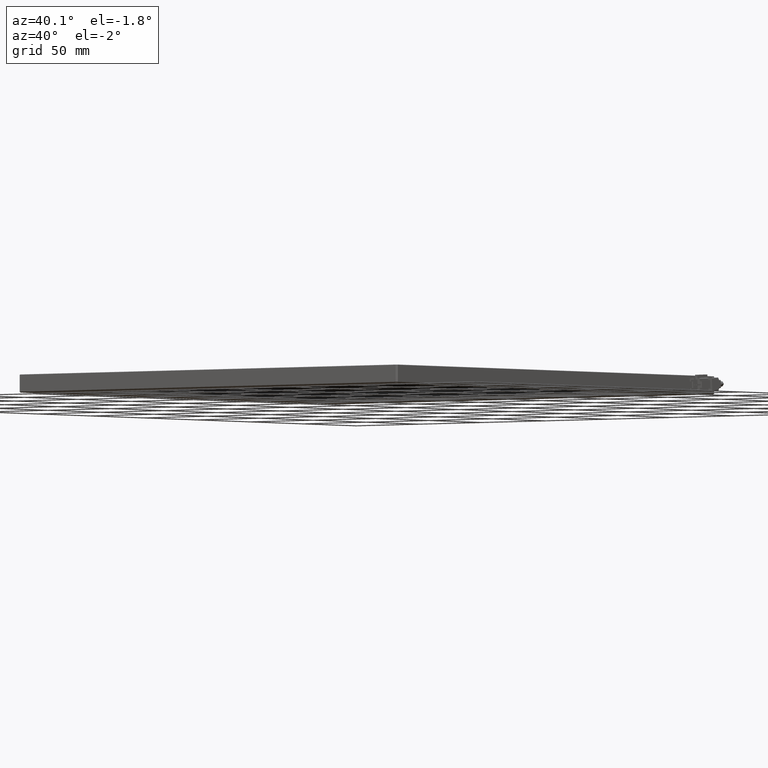
[diagram: clean part render]
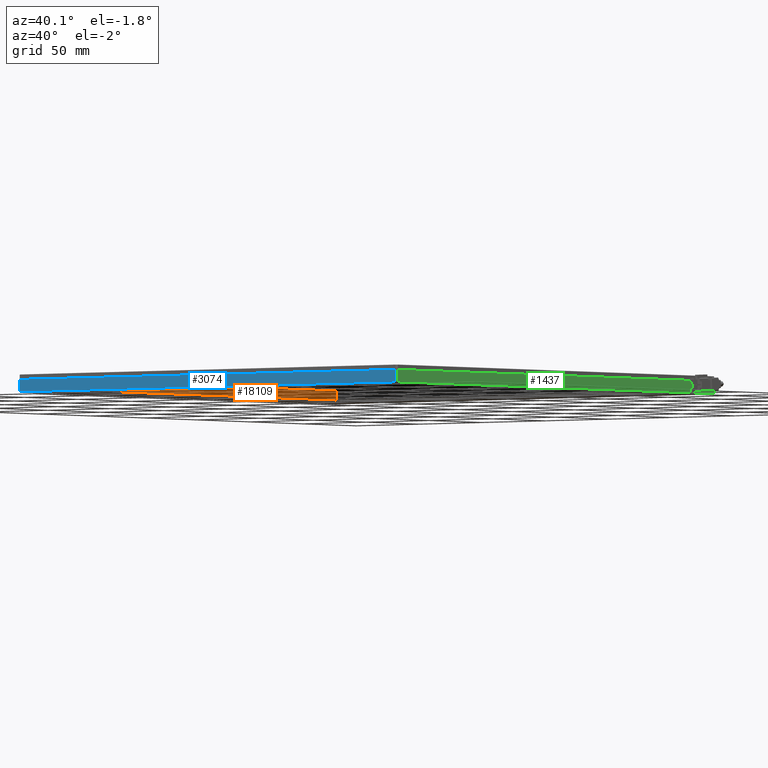
[diagram: same view with three faces highlighted in distinct colors, each labeled with its STEP entity id]
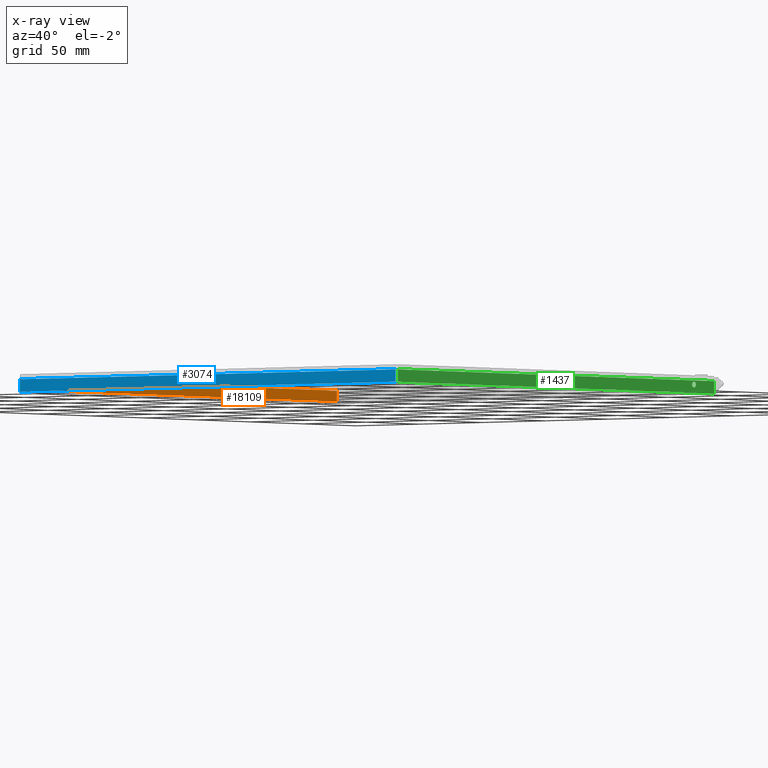
[diagram: x-ray of the same camera — body ghosted, the three highlighted faces saturated]
A machine part, auxiliary view with three faces highlighted in distinct colors.
The next image is the same camera in x-ray (body ghosted, the three faces saturated) — at least one of them is partly hidden behind the body in this view.
Their STEP definitions:

[orange] entity #18109 — the highlighted planar face has unit normal (-1, -0, 0).
#323 = CARTESIAN_POINT ( 'NONE',  ( -175.7273477157360200, -105.5461928934010400, -1.200000000000067900 ) ) ;
#758 = ORIENTED_EDGE ( 'NONE', *, *, #7901, .T. ) ;
#916 = DIRECTION ( 'NONE',  ( -0.0000000000000000000, -1.000000000000000000, 0.0000000000000000000 ) ) ;
#979 = DIRECTION ( 'NONE',  ( -0.0000000000000000000, -0.0000000000000000000, -1.000000000000000000 ) ) ;
#1308 = CARTESIAN_POINT ( 'NONE',  ( -175.7273477157360200, -105.5461928934010400, -1.200000000000067900 ) ) ;
#1511 = EDGE_LOOP ( 'NONE', ( #4537, #18456, #4574, #758 ) ) ;
#1960 = PLANE ( 'NONE',  #7825 ) ;
#2074 = LINE ( 'NONE', #15547, #13334 ) ;
#3110 = EDGE_CURVE ( 'NONE', #3501, #5542, #8206, .T. ) ;
#3501 = VERTEX_POINT ( 'NONE', #4743 ) ;
#3866 = VECTOR ( 'NONE', #8631, 1000.000000000000000 ) ;
#4537 = ORIENTED_EDGE ( 'NONE', *, *, #9585, .F. ) ;
#4574 = ORIENTED_EDGE ( 'NONE', *, *, #6624, .F. ) ;
#4743 = CARTESIAN_POINT ( 'NONE',  ( -175.7273477157360400, 184.4538071065989300, -1.200000000000067900 ) ) ;
#5542 = VERTEX_POINT ( 'NONE', #323 ) ;
#6624 = EDGE_CURVE ( 'NONE', #13172, #3501, #2074, .T. ) ;
#7820 = CARTESIAN_POINT ( 'NONE',  ( -175.7273477157360400, 185.4538071065989300, -1.200000000000067900 ) ) ;
#7825 = AXIS2_PLACEMENT_3D ( 'NONE', #7820, #18114, #9292 ) ;
#7901 = EDGE_CURVE ( 'NONE', #13172, #14641, #8609, .T. ) ;
#8206 = LINE ( 'NONE', #19036, #15585 ) ;
#8609 = LINE ( 'NONE', #10447, #16460 ) ;
#8631 = DIRECTION ( 'NONE',  ( 0.0000000000000000000, 0.0000000000000000000, 1.000000000000000000 ) ) ;
#9292 = DIRECTION ( 'NONE',  ( 1.158462595258484500E-016, -1.000000000000000000, 0.0000000000000000000 ) ) ;
#9521 = CARTESIAN_POINT ( 'NONE',  ( -175.7273477157360400, 184.4538071065989300, 4.999999999999931600 ) ) ;
#9585 = EDGE_CURVE ( 'NONE', #5542, #14641, #11244, .T. ) ;
#10447 = CARTESIAN_POINT ( 'NONE',  ( -175.7273477157360400, 189.4538071065989300, 4.999999999999931600 ) ) ;
#11244 = LINE ( 'NONE', #1308, #3866 ) ;
#13172 = VERTEX_POINT ( 'NONE', #9521 ) ;
#13334 = VECTOR ( 'NONE', #979, 1000.000000000000000 ) ;
#13366 = DIRECTION ( 'NONE',  ( -0.0000000000000000000, -1.000000000000000000, -0.0000000000000000000 ) ) ;
#14641 = VERTEX_POINT ( 'NONE', #18212 ) ;
#15547 = CARTESIAN_POINT ( 'NONE',  ( -175.7273477157360400, 184.4538071065989300, -1.200000000000067900 ) ) ;
#15585 = VECTOR ( 'NONE', #916, 1000.000000000000000 ) ;
#16460 = VECTOR ( 'NONE', #13366, 1000.000000000000000 ) ;
#16738 = FACE_OUTER_BOUND ( 'NONE', #1511, .T. ) ;
#18109 = ADVANCED_FACE ( 'NONE', ( #16738 ), #1960, .F. ) ;
#18114 = DIRECTION ( 'NONE',  ( -1.000000000000000000, -1.158462595258484500E-016, 0.0000000000000000000 ) ) ;
#18212 = CARTESIAN_POINT ( 'NONE',  ( -175.7273477157360200, -105.5461928934010400, 4.999999999999931600 ) ) ;
#18456 = ORIENTED_EDGE ( 'NONE', *, *, #3110, .F. ) ;
#19036 = CARTESIAN_POINT ( 'NONE',  ( -175.7273477157360400, -106.5461928934010400, -1.200000000000067900 ) ) ;

[blue] entity #3074 — the highlighted planar face has unit normal (0, 1, 0).
#1485 = EDGE_CURVE ( 'NONE', #9835, #9663, #11921, .T. ) ;
#1495 = CARTESIAN_POINT ( 'NONE',  ( 119.2726522842640100, -110.5461928934010600, -2.500000000000069700 ) ) ;
#1635 = LINE ( 'NONE', #3003, #5514 ) ;
#2191 = ORIENTED_EDGE ( 'NONE', *, *, #12786, .F. ) ;
#2788 = DIRECTION ( 'NONE',  ( 0.0000000000000000000, 1.000000000000000000, 0.0000000000000000000 ) ) ;
#2812 = DIRECTION ( 'NONE',  ( 0.0000000000000000000, -0.0000000000000000000, 1.000000000000000000 ) ) ;
#2872 = CARTESIAN_POINT ( 'NONE',  ( -179.7273477157360400, -110.5461928934010600, 4.999999999999931600 ) ) ;
#3003 = CARTESIAN_POINT ( 'NONE',  ( -179.7273477157360400, -110.5461928934010600, 4.999999999999931600 ) ) ;
#3074 = ADVANCED_FACE ( 'NONE', ( #10037 ), #7300, .F. ) ;
#3410 = VECTOR ( 'NONE', #14403, 1000.000000000000000 ) ;
#3913 = CARTESIAN_POINT ( 'NONE',  ( -178.7273477157360400, -110.5461928934010700, -2.500000000000066600 ) ) ;
#5246 = VERTEX_POINT ( 'NONE', #3913 ) ;
#5514 = VECTOR ( 'NONE', #11843, 1000.000000000000000 ) ;
#6275 = EDGE_CURVE ( 'NONE', #9835, #7262, #1635, .T. ) ;
#6647 = ORIENTED_EDGE ( 'NONE', *, *, #6275, .T. ) ;
#7262 = VERTEX_POINT ( 'NONE', #13206 ) ;
#7300 = PLANE ( 'NONE',  #15626 ) ;
#8695 = EDGE_LOOP ( 'NONE', ( #2191, #8757, #6647, #10025 ) ) ;
#8757 = ORIENTED_EDGE ( 'NONE', *, *, #1485, .F. ) ;
#9663 = VERTEX_POINT ( 'NONE', #1495 ) ;
#9835 = VERTEX_POINT ( 'NONE', #13680 ) ;
#9868 = CARTESIAN_POINT ( 'NONE',  ( -179.7273477157360400, -110.5461928934010600, -2.500000000000067900 ) ) ;
#10025 = ORIENTED_EDGE ( 'NONE', *, *, #10997, .F. ) ;
#10037 = FACE_OUTER_BOUND ( 'NONE', #8695, .T. ) ;
#10997 = EDGE_CURVE ( 'NONE', #5246, #7262, #19032, .T. ) ;
#11380 = DIRECTION ( 'NONE',  ( -1.000000000000000000, -0.0000000000000000000, -0.0000000000000000000 ) ) ;
#11843 = DIRECTION ( 'NONE',  ( -1.000000000000000000, 0.0000000000000000000, -0.0000000000000000000 ) ) ;
#11921 = LINE ( 'NONE', #14463, #15342 ) ;
#12786 = EDGE_CURVE ( 'NONE', #9663, #5246, #13616, .T. ) ;
#13206 = CARTESIAN_POINT ( 'NONE',  ( -178.7273477157360400, -110.5461928934010600, 4.999999999999931600 ) ) ;
#13616 = LINE ( 'NONE', #9868, #17060 ) ;
#13680 = CARTESIAN_POINT ( 'NONE',  ( 119.2726522842639000, -110.5461928934010600, 4.999999999999931600 ) ) ;
#14403 = DIRECTION ( 'NONE',  ( 0.0000000000000000000, -0.0000000000000000000, 1.000000000000000000 ) ) ;
#14463 = CARTESIAN_POINT ( 'NONE',  ( 119.2726522842639000, -110.5461928934010600, 4.999999999999931600 ) ) ;
#14714 = DIRECTION ( 'NONE',  ( -0.0000000000000000000, 0.0000000000000000000, -1.000000000000000000 ) ) ;
#15342 = VECTOR ( 'NONE', #14714, 1000.000000000000000 ) ;
#15626 = AXIS2_PLACEMENT_3D ( 'NONE', #2872, #2788, #2812 ) ;
#17060 = VECTOR ( 'NONE', #11380, 1000.000000000000000 ) ;
#17334 = CARTESIAN_POINT ( 'NONE',  ( -178.7273477157360400, -110.5461928934010600, 4.999999999999931600 ) ) ;
#19032 = LINE ( 'NONE', #17334, #3410 ) ;

[green] entity #1437 — the highlighted planar face has unit normal (-1, 0, 0).
#259 = CIRCLE ( 'NONE', #15890, 1.749999999999973800 ) ;
#265 = VECTOR ( 'NONE', #17975, 1000.000000000000000 ) ;
#337 = VERTEX_POINT ( 'NONE', #13214 ) ;
#528 = EDGE_LOOP ( 'NONE', ( #12995, #14260, #2086, #6241 ) ) ;
#715 = CARTESIAN_POINT ( 'NONE',  ( 120.2726522842639600, 169.4538071065989000, 2.499999999999931200 ) ) ;
#901 = CARTESIAN_POINT ( 'NONE',  ( 120.2726522842639600, 188.4538071065988700, 4.999999999999931600 ) ) ;
#1437 = ADVANCED_FACE ( 'NONE', ( #7285, #15125 ), #11008, .F. ) ;
#1729 = ORIENTED_EDGE ( 'NONE', *, *, #13161, .F. ) ;
#2086 = ORIENTED_EDGE ( 'NONE', *, *, #8893, .T. ) ;
#2184 = DIRECTION ( 'NONE',  ( 0.0000000000000000000, 0.0000000000000000000, -1.000000000000000000 ) ) ;
#2620 = CARTESIAN_POINT ( 'NONE',  ( 120.2726522842639600, 169.4538071065989000, 2.499999999999931200 ) ) ;
#2805 = VECTOR ( 'NONE', #18889, 1000.000000000000000 ) ;
#3282 = LINE ( 'NONE', #901, #18478 ) ;
#3998 = VECTOR ( 'NONE', #9517, 1000.000000000000000 ) ;
#4096 = DIRECTION ( 'NONE',  ( 0.0000000000000000000, 0.0000000000000000000, -1.000000000000000000 ) ) ;
#5359 = VERTEX_POINT ( 'NONE', #15999 ) ;
#6005 = AXIS2_PLACEMENT_3D ( 'NONE', #2620, #12929, #4096 ) ;
#6083 = EDGE_CURVE ( 'NONE', #16455, #337, #11525, .T. ) ;
#6241 = ORIENTED_EDGE ( 'NONE', *, *, #16112, .F. ) ;
#6646 = EDGE_CURVE ( 'NONE', #17733, #17048, #14013, .T. ) ;
#7285 = FACE_OUTER_BOUND ( 'NONE', #528, .T. ) ;
#8458 = AXIS2_PLACEMENT_3D ( 'NONE', #12607, #12689, #12736 ) ;
#8893 = EDGE_CURVE ( 'NONE', #5359, #14766, #9492, .T. ) ;
#8964 = EDGE_CURVE ( 'NONE', #5359, #16455, #3282, .T. ) ;
#9492 = LINE ( 'NONE', #18343, #3998 ) ;
#9517 = DIRECTION ( 'NONE',  ( -0.0000000000000000000, -1.000000000000000000, -0.0000000000000000000 ) ) ;
#10079 = CARTESIAN_POINT ( 'NONE',  ( 120.2726522842639600, -109.5461928934010400, 4.999999999999931600 ) ) ;
#10719 = CARTESIAN_POINT ( 'NONE',  ( 120.2726522842639600, -110.5461928934010600, -2.500000000000067900 ) ) ;
#10988 = DIRECTION ( 'NONE',  ( 1.000000000000000000, -0.0000000000000000000, -0.0000000000000000000 ) ) ;
#11008 = PLANE ( 'NONE',  #8458 ) ;
#11278 = CARTESIAN_POINT ( 'NONE',  ( 120.2726522842639600, 169.4538071065989000, 0.7499999999999572600 ) ) ;
#11314 = ORIENTED_EDGE ( 'NONE', *, *, #6646, .F. ) ;
#11525 = LINE ( 'NONE', #10719, #265 ) ;
#12607 = CARTESIAN_POINT ( 'NONE',  ( 120.2726522842639600, -110.5461928934010600, 4.999999999999931600 ) ) ;
#12689 = DIRECTION ( 'NONE',  ( -1.000000000000000000, 0.0000000000000000000, 0.0000000000000000000 ) ) ;
#12736 = DIRECTION ( 'NONE',  ( 0.0000000000000000000, 0.0000000000000000000, 1.000000000000000000 ) ) ;
#12776 = CARTESIAN_POINT ( 'NONE',  ( 120.2726522842640100, -109.5461928934010300, 4.999999999999931600 ) ) ;
#12929 = DIRECTION ( 'NONE',  ( 1.000000000000000000, -0.0000000000000000000, -0.0000000000000000000 ) ) ;
#12995 = ORIENTED_EDGE ( 'NONE', *, *, #6083, .F. ) ;
#13161 = EDGE_CURVE ( 'NONE', #17048, #17733, #259, .T. ) ;
#13214 = CARTESIAN_POINT ( 'NONE',  ( 120.2726522842639600, -109.5461928934010400, -2.500000000000069700 ) ) ;
#13357 = EDGE_LOOP ( 'NONE', ( #11314, #1729 ) ) ;
#14013 = CIRCLE ( 'NONE', #6005, 1.749999999999973800 ) ;
#14260 = ORIENTED_EDGE ( 'NONE', *, *, #8964, .F. ) ;
#14766 = VERTEX_POINT ( 'NONE', #12776 ) ;
#15125 = FACE_BOUND ( 'NONE', #13357, .T. ) ;
#15207 = CARTESIAN_POINT ( 'NONE',  ( 120.2726522842639600, 169.4538071065989000, 4.249999999999905000 ) ) ;
#15890 = AXIS2_PLACEMENT_3D ( 'NONE', #715, #10988, #2184 ) ;
#15999 = CARTESIAN_POINT ( 'NONE',  ( 120.2726522842640100, 188.4538071065988700, 4.999999999999931600 ) ) ;
#16112 = EDGE_CURVE ( 'NONE', #337, #14766, #18455, .T. ) ;
#16455 = VERTEX_POINT ( 'NONE', #16847 ) ;
#16847 = CARTESIAN_POINT ( 'NONE',  ( 120.2726522842639600, 188.4538071065989300, -2.500000000000066600 ) ) ;
#17048 = VERTEX_POINT ( 'NONE', #15207 ) ;
#17733 = VERTEX_POINT ( 'NONE', #11278 ) ;
#17975 = DIRECTION ( 'NONE',  ( -0.0000000000000000000, -1.000000000000000000, -0.0000000000000000000 ) ) ;
#18343 = CARTESIAN_POINT ( 'NONE',  ( 120.2726522842640100, 189.4538071065989300, 4.999999999999931600 ) ) ;
#18455 = LINE ( 'NONE', #10079, #2805 ) ;
#18477 = DIRECTION ( 'NONE',  ( -0.0000000000000000000, -0.0000000000000000000, -1.000000000000000000 ) ) ;
#18478 = VECTOR ( 'NONE', #18477, 1000.000000000000000 ) ;
#18889 = DIRECTION ( 'NONE',  ( 0.0000000000000000000, 0.0000000000000000000, 1.000000000000000000 ) ) ;